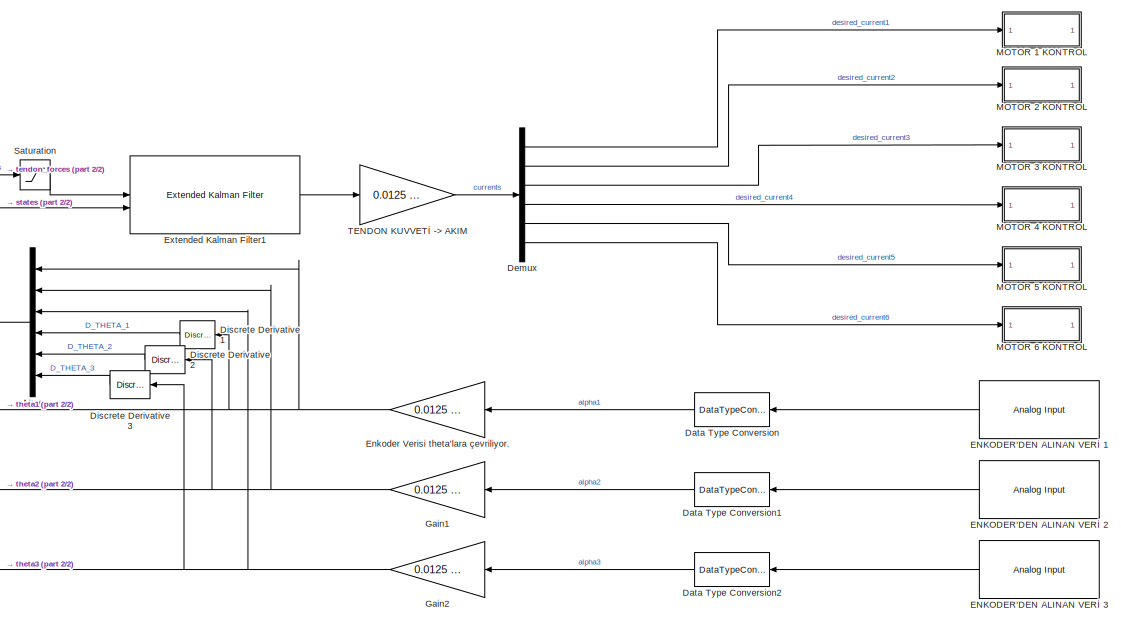
[diagram: root canvas - part 1/2, right side, full height]
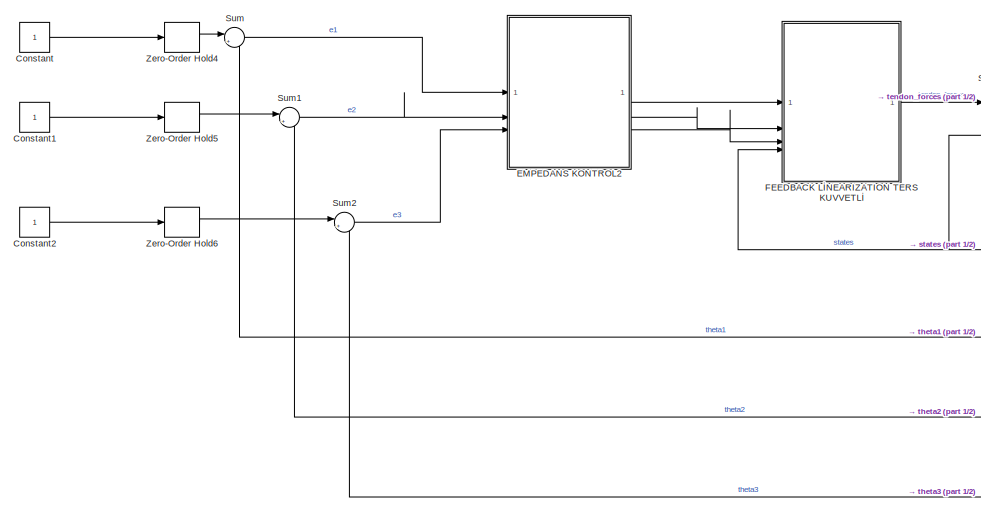
[diagram: root canvas - part 2/2, left side, full height]
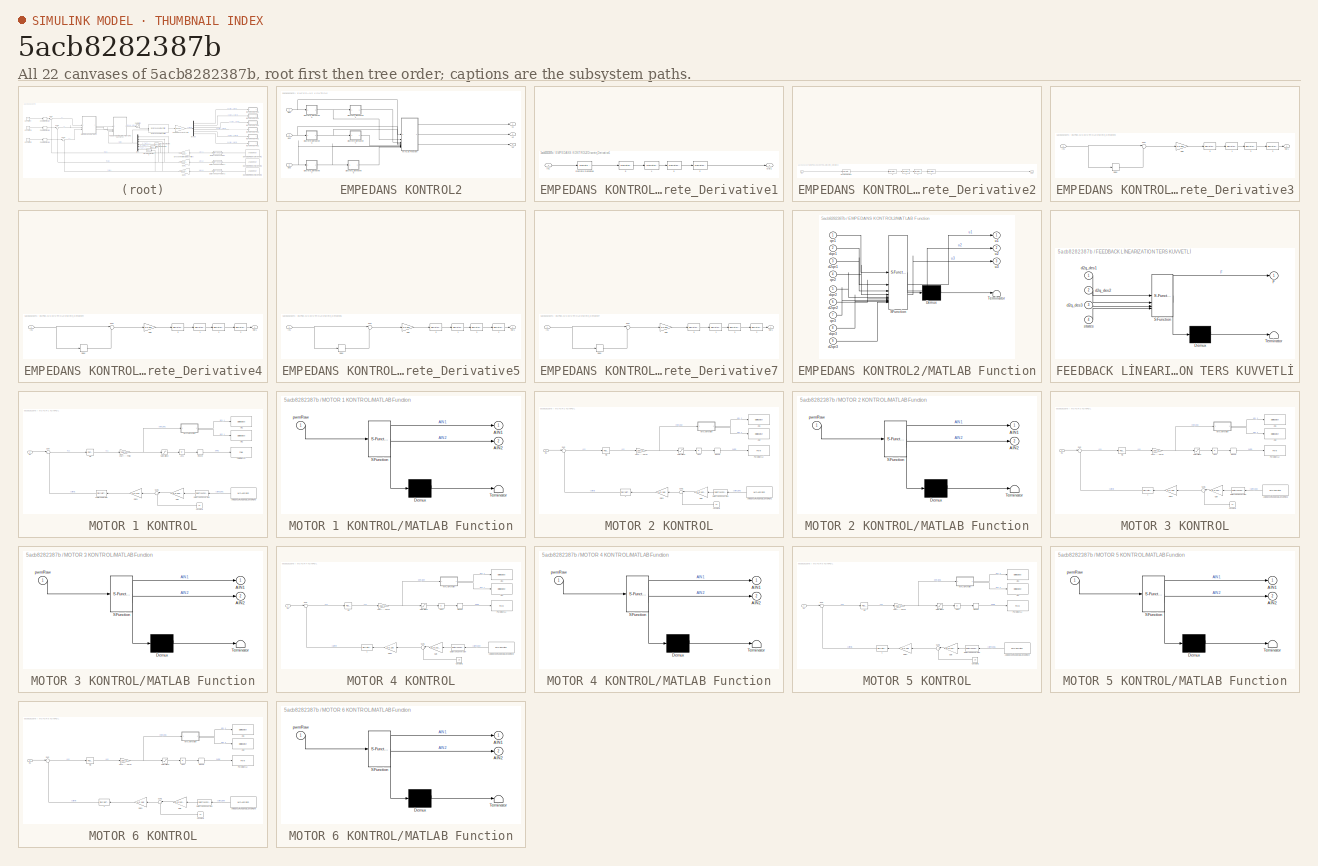
[diagram: thumbnail index - all 22 canvases of the model, root first then tree order]
MODEL slx_5acb8282387b
KIND model
CONFIG AbsTol = auto
CONFIG EnableMultiTasking = off
CONFIG FixedStep = 0.001
CONFIG MaxStep = auto
CONFIG MinStep = auto
CONFIG RelTol = 1e-3
CONFIG SampleTimeConstraint = Unconstrained
CONFIG SolverName = FixedStepDiscrete
CONFIG StartTime = 0.0
CONFIG StopTime = 10.0
BLOCK [Constant] Constant
BLOCK [Constant] Constant1
BLOCK [Constant] Constant2
BLOCK [DataTypeConversion] Data Type Conversion
  NameLocation = top
  OutDataTypeStr = double
  RndMeth = Floor
  SaturateOnIntegerOverflow = off
BLOCK [DataTypeConversion] Data Type Conversion1
  NameLocation = top
  OutDataTypeStr = double
  RndMeth = Floor
  SaturateOnIntegerOverflow = off
BLOCK [DataTypeConversion] Data Type Conversion2
  NameLocation = top
  OutDataTypeStr = double
  RndMeth = Floor
  SaturateOnIntegerOverflow = off
BLOCK [Demux] Demux
  Outputs = 6
BLOCK [Reference] Discrete Derivative1  REF=simulink/Discrete/Discrete Derivative
  NameLocation = top
  SourceBlock = simulink/Discrete/Discrete Derivative
  SourceType = Discrete Derivative
BLOCK [Reference] Discrete Derivative2  REF=simulink/Discrete/Discrete Derivative
  NameLocation = top
  SourceBlock = simulink/Discrete/Discrete Derivative
  SourceType = Discrete Derivative
BLOCK [Reference] Discrete Derivative3  REF=simulink/Discrete/Discrete Derivative
  NameLocation = top
  SourceBlock = simulink/Discrete/Discrete Derivative
  SourceType = Discrete Derivative
BLOCK [SubSystem] EMPEDANS KONTROL2
BLOCK [SubSystem] EMPEDANS KONTROL2/Discrete_Derivative1
BLOCK [DiscreteTransferFcn] EMPEDANS KONTROL2/Discrete_Derivative1/1
  CloseFcn = dspblkCoreblockFVToolHelper(gcbh,'close');
  CopyFcn = dspblkCoreblockFVToolHelper(gcbh,'copy');
  DeleteFcn = dspblkCoreblockFVToolHelper(gcbh,'close');
  Denominator = [1 -0.9412]
  InputPortMap = u0
  LoadFcn = dspblkCoreblockFVToolHelper(gcbh,'load');
  ModelCloseFcn = dspblkCoreblockFVToolHelper(gcbh,'close');
  NameLocation = top
  Numerator = [0.0588]
  PostSaveFcn = dspblkCoreblockFVToolHelper(gcbh,'postsave');
  PreSaveFcn = dspblkCoreblockFVToolHelper(gcbh,'presave');
BLOCK [DiscreteTransferFcn] EMPEDANS KONTROL2/Discrete_Derivative1/2
  CloseFcn = dspblkCoreblockFVToolHelper(gcbh,'close');
  CopyFcn = dspblkCoreblockFVToolHelper(gcbh,'copy');
  DeleteFcn = dspblkCoreblockFVToolHelper(gcbh,'close');
  Denominator = [1 -0.9412]
  InputPortMap = u0
  LoadFcn = dspblkCoreblockFVToolHelper(gcbh,'load');
  ModelCloseFcn = dspblkCoreblockFVToolHelper(gcbh,'close');
  NameLocation = top
  Numerator = [0.0588]
  PostSaveFcn = dspblkCoreblockFVToolHelper(gcbh,'postsave');
  PreSaveFcn = dspblkCoreblockFVToolHelper(gcbh,'presave');
BLOCK [DiscreteTransferFcn] EMPEDANS KONTROL2/Discrete_Derivative1/3
  CloseFcn = dspblkCoreblockFVToolHelper(gcbh,'close');
  CopyFcn = dspblkCoreblockFVToolHelper(gcbh,'copy');
  DeleteFcn = dspblkCoreblockFVToolHelper(gcbh,'close');
  Denominator = [1 -0.9412]
  InputPortMap = u0
  LoadFcn = dspblkCoreblockFVToolHelper(gcbh,'load');
  ModelCloseFcn = dspblkCoreblockFVToolHelper(gcbh,'close');
  NameLocation = top
  Numerator = [0.0588]
  PostSaveFcn = dspblkCoreblockFVToolHelper(gcbh,'postsave');
  PreSaveFcn = dspblkCoreblockFVToolHelper(gcbh,'presave');
BLOCK [DiscreteTransferFcn] EMPEDANS KONTROL2/Discrete_Derivative1/5
  CloseFcn = dspblkCoreblockFVToolHelper(gcbh,'close');
  CopyFcn = dspblkCoreblockFVToolHelper(gcbh,'copy');
  DeleteFcn = dspblkCoreblockFVToolHelper(gcbh,'close');
  Denominator = [1 -0.9412]
  InputPortMap = u0
  LoadFcn = dspblkCoreblockFVToolHelper(gcbh,'load');
  ModelCloseFcn = dspblkCoreblockFVToolHelper(gcbh,'close');
  NameLocation = top
  Numerator = [0.0588]
  PostSaveFcn = dspblkCoreblockFVToolHelper(gcbh,'postsave');
  PreSaveFcn = dspblkCoreblockFVToolHelper(gcbh,'presave');
BLOCK [Reference] EMPEDANS KONTROL2/Discrete_Derivative1/Discrete Derivative  REF=simulink/Discrete/Discrete Derivative
  SourceBlock = simulink/Discrete/Discrete Derivative
  SourceType = Discrete Derivative
BLOCK [Inport] EMPEDANS KONTROL2/Discrete_Derivative1/In1
BLOCK [Outport] EMPEDANS KONTROL2/Discrete_Derivative1/Out1
BLOCK [SubSystem] EMPEDANS KONTROL2/Discrete_Derivative2
BLOCK [DiscreteTransferFcn] EMPEDANS KONTROL2/Discrete_Derivative2/1
  CloseFcn = dspblkCoreblockFVToolHelper(gcbh,'close');
  CopyFcn = dspblkCoreblockFVToolHelper(gcbh,'copy');
  DeleteFcn = dspblkCoreblockFVToolHelper(gcbh,'close');
  Denominator = [1 -0.9412]
  InputPortMap = u0
  LoadFcn = dspblkCoreblockFVToolHelper(gcbh,'load');
  ModelCloseFcn = dspblkCoreblockFVToolHelper(gcbh,'close');
  NameLocation = top
  Numerator = [0.0588]
  PostSaveFcn = dspblkCoreblockFVToolHelper(gcbh,'postsave');
  PreSaveFcn = dspblkCoreblockFVToolHelper(gcbh,'presave');
BLOCK [DiscreteTransferFcn] EMPEDANS KONTROL2/Discrete_Derivative2/2
  CloseFcn = dspblkCoreblockFVToolHelper(gcbh,'close');
  CopyFcn = dspblkCoreblockFVToolHelper(gcbh,'copy');
  DeleteFcn = dspblkCoreblockFVToolHelper(gcbh,'close');
  Denominator = [1 -0.9412]
  InputPortMap = u0
  LoadFcn = dspblkCoreblockFVToolHelper(gcbh,'load');
  ModelCloseFcn = dspblkCoreblockFVToolHelper(gcbh,'close');
  NameLocation = top
  Numerator = [0.0588]
  PostSaveFcn = dspblkCoreblockFVToolHelper(gcbh,'postsave');
  PreSaveFcn = dspblkCoreblockFVToolHelper(gcbh,'presave');
BLOCK [DiscreteTransferFcn] EMPEDANS KONTROL2/Discrete_Derivative2/3
  CloseFcn = dspblkCoreblockFVToolHelper(gcbh,'close');
  CopyFcn = dspblkCoreblockFVToolHelper(gcbh,'copy');
  DeleteFcn = dspblkCoreblockFVToolHelper(gcbh,'close');
  Denominator = [1 -0.9412]
  InputPortMap = u0
  LoadFcn = dspblkCoreblockFVToolHelper(gcbh,'load');
  ModelCloseFcn = dspblkCoreblockFVToolHelper(gcbh,'close');
  NameLocation = top
  Numerator = [0.0588]
  PostSaveFcn = dspblkCoreblockFVToolHelper(gcbh,'postsave');
  PreSaveFcn = dspblkCoreblockFVToolHelper(gcbh,'presave');
BLOCK [DiscreteTransferFcn] EMPEDANS KONTROL2/Discrete_Derivative2/5
  CloseFcn = dspblkCoreblockFVToolHelper(gcbh,'close');
  CopyFcn = dspblkCoreblockFVToolHelper(gcbh,'copy');
  DeleteFcn = dspblkCoreblockFVToolHelper(gcbh,'close');
  Denominator = [1 -0.9412]
  InputPortMap = u0
  LoadFcn = dspblkCoreblockFVToolHelper(gcbh,'load');
  ModelCloseFcn = dspblkCoreblockFVToolHelper(gcbh,'close');
  NameLocation = top
  Numerator = [0.0588]
  PostSaveFcn = dspblkCoreblockFVToolHelper(gcbh,'postsave');
  PreSaveFcn = dspblkCoreblockFVToolHelper(gcbh,'presave');
BLOCK [Reference] EMPEDANS KONTROL2/Discrete_Derivative2/Discrete Derivative  REF=simulink/Discrete/Discrete Derivative
  SourceBlock = simulink/Discrete/Discrete Derivative
  SourceType = Discrete Derivative
BLOCK [Inport] EMPEDANS KONTROL2/Discrete_Derivative2/In1
BLOCK [Outport] EMPEDANS KONTROL2/Discrete_Derivative2/Out1
BLOCK [SubSystem] EMPEDANS KONTROL2/Discrete_Derivative3
BLOCK [DiscreteTransferFcn] EMPEDANS KONTROL2/Discrete_Derivative3/1
  CloseFcn = dspblkCoreblockFVToolHelper(gcbh,'close');
  CopyFcn = dspblkCoreblockFVToolHelper(gcbh,'copy');
  DeleteFcn = dspblkCoreblockFVToolHelper(gcbh,'close');
  Denominator = [1 -0.9412]
  InputPortMap = u0
  LoadFcn = dspblkCoreblockFVToolHelper(gcbh,'load');
  ModelCloseFcn = dspblkCoreblockFVToolHelper(gcbh,'close');
  NameLocation = top
  Numerator = [0.0588]
  PostSaveFcn = dspblkCoreblockFVToolHelper(gcbh,'postsave');
  PreSaveFcn = dspblkCoreblockFVToolHelper(gcbh,'presave');
BLOCK [DiscreteTransferFcn] EMPEDANS KONTROL2/Discrete_Derivative3/2
  CloseFcn = dspblkCoreblockFVToolHelper(gcbh,'close');
  CopyFcn = dspblkCoreblockFVToolHelper(gcbh,'copy');
  DeleteFcn = dspblkCoreblockFVToolHelper(gcbh,'close');
  Denominator = [1 -0.9412]
  InputPortMap = u0
  LoadFcn = dspblkCoreblockFVToolHelper(gcbh,'load');
  ModelCloseFcn = dspblkCoreblockFVToolHelper(gcbh,'close');
  NameLocation = top
  Numerator = [0.0588]
  PostSaveFcn = dspblkCoreblockFVToolHelper(gcbh,'postsave');
  PreSaveFcn = dspblkCoreblockFVToolHelper(gcbh,'presave');
BLOCK [DiscreteTransferFcn] EMPEDANS KONTROL2/Discrete_Derivative3/3
  CloseFcn = dspblkCoreblockFVToolHelper(gcbh,'close');
  CopyFcn = dspblkCoreblockFVToolHelper(gcbh,'copy');
  DeleteFcn = dspblkCoreblockFVToolHelper(gcbh,'close');
  Denominator = [1 -0.9412]
  InputPortMap = u0
  LoadFcn = dspblkCoreblockFVToolHelper(gcbh,'load');
  ModelCloseFcn = dspblkCoreblockFVToolHelper(gcbh,'close');
  NameLocation = top
  Numerator = [0.0588]
  PostSaveFcn = dspblkCoreblockFVToolHelper(gcbh,'postsave');
  PreSaveFcn = dspblkCoreblockFVToolHelper(gcbh,'presave');
BLOCK [DiscreteTransferFcn] EMPEDANS KONTROL2/Discrete_Derivative3/5
  CloseFcn = dspblkCoreblockFVToolHelper(gcbh,'close');
  CopyFcn = dspblkCoreblockFVToolHelper(gcbh,'copy');
  DeleteFcn = dspblkCoreblockFVToolHelper(gcbh,'close');
  Denominator = [1 -0.9412]
  InputPortMap = u0
  LoadFcn = dspblkCoreblockFVToolHelper(gcbh,'load');
  ModelCloseFcn = dspblkCoreblockFVToolHelper(gcbh,'close');
  NameLocation = top
  Numerator = [0.0588]
  PostSaveFcn = dspblkCoreblockFVToolHelper(gcbh,'postsave');
  PreSaveFcn = dspblkCoreblockFVToolHelper(gcbh,'presave');
BLOCK [Delay] EMPEDANS KONTROL2/Discrete_Derivative3/Delay
  DelayLength = 1
  InputPortMap = u0
  InputProcessing = Columns as channels (frame based)
  SampleTime = 0.001
BLOCK [Gain] EMPEDANS KONTROL2/Discrete_Derivative3/Gain
  Gain = 1/0.001
BLOCK [Inport] EMPEDANS KONTROL2/Discrete_Derivative3/In1
BLOCK [Outport] EMPEDANS KONTROL2/Discrete_Derivative3/Out1
BLOCK [Sum] EMPEDANS KONTROL2/Discrete_Derivative3/Sum
  Inputs = |+-
BLOCK [SubSystem] EMPEDANS KONTROL2/Discrete_Derivative4
BLOCK [DiscreteTransferFcn] EMPEDANS KONTROL2/Discrete_Derivative4/1
  CloseFcn = dspblkCoreblockFVToolHelper(gcbh,'close');
  CopyFcn = dspblkCoreblockFVToolHelper(gcbh,'copy');
  DeleteFcn = dspblkCoreblockFVToolHelper(gcbh,'close');
  Denominator = [1 -0.9412]
  InputPortMap = u0
  LoadFcn = dspblkCoreblockFVToolHelper(gcbh,'load');
  ModelCloseFcn = dspblkCoreblockFVToolHelper(gcbh,'close');
  NameLocation = top
  Numerator = [0.0588]
  PostSaveFcn = dspblkCoreblockFVToolHelper(gcbh,'postsave');
  PreSaveFcn = dspblkCoreblockFVToolHelper(gcbh,'presave');
BLOCK [DiscreteTransferFcn] EMPEDANS KONTROL2/Discrete_Derivative4/2
  CloseFcn = dspblkCoreblockFVToolHelper(gcbh,'close');
  CopyFcn = dspblkCoreblockFVToolHelper(gcbh,'copy');
  DeleteFcn = dspblkCoreblockFVToolHelper(gcbh,'close');
  Denominator = [1 -0.9412]
  InputPortMap = u0
  LoadFcn = dspblkCoreblockFVToolHelper(gcbh,'load');
  ModelCloseFcn = dspblkCoreblockFVToolHelper(gcbh,'close');
  NameLocation = top
  Numerator = [0.0588]
  PostSaveFcn = dspblkCoreblockFVToolHelper(gcbh,'postsave');
  PreSaveFcn = dspblkCoreblockFVToolHelper(gcbh,'presave');
BLOCK [DiscreteTransferFcn] EMPEDANS KONTROL2/Discrete_Derivative4/3
  CloseFcn = dspblkCoreblockFVToolHelper(gcbh,'close');
  CopyFcn = dspblkCoreblockFVToolHelper(gcbh,'copy');
  DeleteFcn = dspblkCoreblockFVToolHelper(gcbh,'close');
  Denominator = [1 -0.9412]
  InputPortMap = u0
  LoadFcn = dspblkCoreblockFVToolHelper(gcbh,'load');
  ModelCloseFcn = dspblkCoreblockFVToolHelper(gcbh,'close');
  NameLocation = top
  Numerator = [0.0588]
  PostSaveFcn = dspblkCoreblockFVToolHelper(gcbh,'postsave');
  PreSaveFcn = dspblkCoreblockFVToolHelper(gcbh,'presave');
BLOCK [DiscreteTransferFcn] EMPEDANS KONTROL2/Discrete_Derivative4/5
  CloseFcn = dspblkCoreblockFVToolHelper(gcbh,'close');
  CopyFcn = dspblkCoreblockFVToolHelper(gcbh,'copy');
  DeleteFcn = dspblkCoreblockFVToolHelper(gcbh,'close');
  Denominator = [1 -0.9412]
  InputPortMap = u0
  LoadFcn = dspblkCoreblockFVToolHelper(gcbh,'load');
  ModelCloseFcn = dspblkCoreblockFVToolHelper(gcbh,'close');
  NameLocation = top
  Numerator = [0.0588]
  PostSaveFcn = dspblkCoreblockFVToolHelper(gcbh,'postsave');
  PreSaveFcn = dspblkCoreblockFVToolHelper(gcbh,'presave');
BLOCK [Delay] EMPEDANS KONTROL2/Discrete_Derivative4/Delay
  DelayLength = 1
  InputPortMap = u0
  InputProcessing = Columns as channels (frame based)
  SampleTime = 0.001
BLOCK [Gain] EMPEDANS KONTROL2/Discrete_Derivative4/Gain
  Gain = 1/0.001
BLOCK [Inport] EMPEDANS KONTROL2/Discrete_Derivative4/In1
BLOCK [Outport] EMPEDANS KONTROL2/Discrete_Derivative4/Out1
BLOCK [Sum] EMPEDANS KONTROL2/Discrete_Derivative4/Sum
  Inputs = |+-
BLOCK [SubSystem] EMPEDANS KONTROL2/Discrete_Derivative5
BLOCK [DiscreteTransferFcn] EMPEDANS KONTROL2/Discrete_Derivative5/1
  CloseFcn = dspblkCoreblockFVToolHelper(gcbh,'close');
  CopyFcn = dspblkCoreblockFVToolHelper(gcbh,'copy');
  DeleteFcn = dspblkCoreblockFVToolHelper(gcbh,'close');
  Denominator = [1 -0.9412]
  InputPortMap = u0
  LoadFcn = dspblkCoreblockFVToolHelper(gcbh,'load');
  ModelCloseFcn = dspblkCoreblockFVToolHelper(gcbh,'close');
  NameLocation = top
  Numerator = [0.0588]
  PostSaveFcn = dspblkCoreblockFVToolHelper(gcbh,'postsave');
  PreSaveFcn = dspblkCoreblockFVToolHelper(gcbh,'presave');
BLOCK [DiscreteTransferFcn] EMPEDANS KONTROL2/Discrete_Derivative5/2
  CloseFcn = dspblkCoreblockFVToolHelper(gcbh,'close');
  CopyFcn = dspblkCoreblockFVToolHelper(gcbh,'copy');
  DeleteFcn = dspblkCoreblockFVToolHelper(gcbh,'close');
  Denominator = [1 -0.9412]
  InputPortMap = u0
  LoadFcn = dspblkCoreblockFVToolHelper(gcbh,'load');
  ModelCloseFcn = dspblkCoreblockFVToolHelper(gcbh,'close');
  NameLocation = top
  Numerator = [0.0588]
  PostSaveFcn = dspblkCoreblockFVToolHelper(gcbh,'postsave');
  PreSaveFcn = dspblkCoreblockFVToolHelper(gcbh,'presave');
BLOCK [DiscreteTransferFcn] EMPEDANS KONTROL2/Discrete_Derivative5/3
  CloseFcn = dspblkCoreblockFVToolHelper(gcbh,'close');
  CopyFcn = dspblkCoreblockFVToolHelper(gcbh,'copy');
  DeleteFcn = dspblkCoreblockFVToolHelper(gcbh,'close');
  Denominator = [1 -0.9412]
  InputPortMap = u0
  LoadFcn = dspblkCoreblockFVToolHelper(gcbh,'load');
  ModelCloseFcn = dspblkCoreblockFVToolHelper(gcbh,'close');
  NameLocation = top
  Numerator = [0.0588]
  PostSaveFcn = dspblkCoreblockFVToolHelper(gcbh,'postsave');
  PreSaveFcn = dspblkCoreblockFVToolHelper(gcbh,'presave');
BLOCK [DiscreteTransferFcn] EMPEDANS KONTROL2/Discrete_Derivative5/5
  CloseFcn = dspblkCoreblockFVToolHelper(gcbh,'close');
  CopyFcn = dspblkCoreblockFVToolHelper(gcbh,'copy');
  DeleteFcn = dspblkCoreblockFVToolHelper(gcbh,'close');
  Denominator = [1 -0.9412]
  InputPortMap = u0
  LoadFcn = dspblkCoreblockFVToolHelper(gcbh,'load');
  ModelCloseFcn = dspblkCoreblockFVToolHelper(gcbh,'close');
  NameLocation = top
  Numerator = [0.0588]
  PostSaveFcn = dspblkCoreblockFVToolHelper(gcbh,'postsave');
  PreSaveFcn = dspblkCoreblockFVToolHelper(gcbh,'presave');
BLOCK [Delay] EMPEDANS KONTROL2/Discrete_Derivative5/Delay
  DelayLength = 1
  InputPortMap = u0
  InputProcessing = Columns as channels (frame based)
  SampleTime = 0.001
BLOCK [Gain] EMPEDANS KONTROL2/Discrete_Derivative5/Gain
  Gain = 1/0.001
BLOCK [Inport] EMPEDANS KONTROL2/Discrete_Derivative5/In1
BLOCK [Outport] EMPEDANS KONTROL2/Discrete_Derivative5/Out1
BLOCK [Sum] EMPEDANS KONTROL2/Discrete_Derivative5/Sum
  Inputs = |+-
BLOCK [SubSystem] EMPEDANS KONTROL2/Discrete_Derivative7
BLOCK [DiscreteTransferFcn] EMPEDANS KONTROL2/Discrete_Derivative7/1
  CloseFcn = dspblkCoreblockFVToolHelper(gcbh,'close');
  CopyFcn = dspblkCoreblockFVToolHelper(gcbh,'copy');
  DeleteFcn = dspblkCoreblockFVToolHelper(gcbh,'close');
  Denominator = [1 -0.9412]
  InputPortMap = u0
  LoadFcn = dspblkCoreblockFVToolHelper(gcbh,'load');
  ModelCloseFcn = dspblkCoreblockFVToolHelper(gcbh,'close');
  NameLocation = top
  Numerator = [0.0588]
  PostSaveFcn = dspblkCoreblockFVToolHelper(gcbh,'postsave');
  PreSaveFcn = dspblkCoreblockFVToolHelper(gcbh,'presave');
BLOCK [DiscreteTransferFcn] EMPEDANS KONTROL2/Discrete_Derivative7/2
  CloseFcn = dspblkCoreblockFVToolHelper(gcbh,'close');
  CopyFcn = dspblkCoreblockFVToolHelper(gcbh,'copy');
  DeleteFcn = dspblkCoreblockFVToolHelper(gcbh,'close');
  Denominator = [1 -0.9412]
  InputPortMap = u0
  LoadFcn = dspblkCoreblockFVToolHelper(gcbh,'load');
  ModelCloseFcn = dspblkCoreblockFVToolHelper(gcbh,'close');
  NameLocation = top
  Numerator = [0.0588]
  PostSaveFcn = dspblkCoreblockFVToolHelper(gcbh,'postsave');
  PreSaveFcn = dspblkCoreblockFVToolHelper(gcbh,'presave');
BLOCK [DiscreteTransferFcn] EMPEDANS KONTROL2/Discrete_Derivative7/3
  CloseFcn = dspblkCoreblockFVToolHelper(gcbh,'close');
  CopyFcn = dspblkCoreblockFVToolHelper(gcbh,'copy');
  DeleteFcn = dspblkCoreblockFVToolHelper(gcbh,'close');
  Denominator = [1 -0.9412]
  InputPortMap = u0
  LoadFcn = dspblkCoreblockFVToolHelper(gcbh,'load');
  ModelCloseFcn = dspblkCoreblockFVToolHelper(gcbh,'close');
  NameLocation = top
  Numerator = [0.0588]
  PostSaveFcn = dspblkCoreblockFVToolHelper(gcbh,'postsave');
  PreSaveFcn = dspblkCoreblockFVToolHelper(gcbh,'presave');
BLOCK [DiscreteTransferFcn] EMPEDANS KONTROL2/Discrete_Derivative7/5
  CloseFcn = dspblkCoreblockFVToolHelper(gcbh,'close');
  CopyFcn = dspblkCoreblockFVToolHelper(gcbh,'copy');
  DeleteFcn = dspblkCoreblockFVToolHelper(gcbh,'close');
  Denominator = [1 -0.9412]
  InputPortMap = u0
  LoadFcn = dspblkCoreblockFVToolHelper(gcbh,'load');
  ModelCloseFcn = dspblkCoreblockFVToolHelper(gcbh,'close');
  NameLocation = top
  Numerator = [0.0588]
  PostSaveFcn = dspblkCoreblockFVToolHelper(gcbh,'postsave');
  PreSaveFcn = dspblkCoreblockFVToolHelper(gcbh,'presave');
BLOCK [Delay] EMPEDANS KONTROL2/Discrete_Derivative7/Delay
  DelayLength = 1
  InputPortMap = u0
  InputProcessing = Columns as channels (frame based)
  SampleTime = 0.001
BLOCK [Gain] EMPEDANS KONTROL2/Discrete_Derivative7/Gain
  Gain = 1/0.001
BLOCK [Inport] EMPEDANS KONTROL2/Discrete_Derivative7/In1
BLOCK [Outport] EMPEDANS KONTROL2/Discrete_Derivative7/Out1
BLOCK [Sum] EMPEDANS KONTROL2/Discrete_Derivative7/Sum
  Inputs = |+-
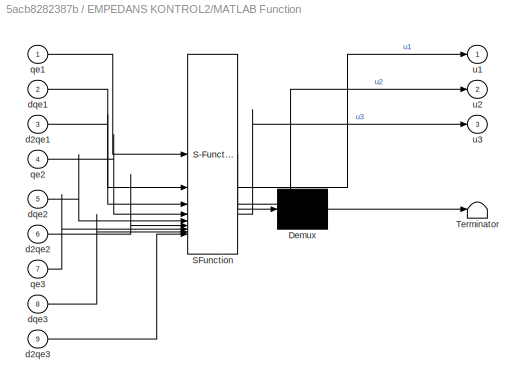
BLOCK [SubSystem] EMPEDANS KONTROL2/MATLAB Function
  ErrorFcn = Stateflow.Translate.translate
  PermitHierarchicalResolution = ExplicitOnly
  SFBlockType = MATLAB Function
  TreatAsAtomicUnit = on
BLOCK [Demux] EMPEDANS KONTROL2/MATLAB Function/ Demux 
  Outputs = 1
BLOCK [S-Function] EMPEDANS KONTROL2/MATLAB Function/ SFunction 
  EnableBusSupport = on
  FunctionName = sf_sfun
  PortCounts = [9 4]
  SFcnIsStateOwnerBlock = off
  SFunctionDeploymentMode = off
  Tag = Stateflow S-Function 5
BLOCK [Terminator] EMPEDANS KONTROL2/MATLAB Function/ Terminator 
BLOCK [Inport] EMPEDANS KONTROL2/MATLAB Function/d2qe1
  Port = 3
BLOCK [Inport] EMPEDANS KONTROL2/MATLAB Function/d2qe2
  Port = 6
BLOCK [Inport] EMPEDANS KONTROL2/MATLAB Function/d2qe3
  Port = 9
BLOCK [Inport] EMPEDANS KONTROL2/MATLAB Function/dqe1
  Port = 2
BLOCK [Inport] EMPEDANS KONTROL2/MATLAB Function/dqe2
  Port = 5
BLOCK [Inport] EMPEDANS KONTROL2/MATLAB Function/dqe3
  Port = 8
BLOCK [Inport] EMPEDANS KONTROL2/MATLAB Function/qe1
BLOCK [Inport] EMPEDANS KONTROL2/MATLAB Function/qe2
  Port = 4
BLOCK [Inport] EMPEDANS KONTROL2/MATLAB Function/qe3
  Port = 7
BLOCK [Outport] EMPEDANS KONTROL2/MATLAB Function/u1
BLOCK [Outport] EMPEDANS KONTROL2/MATLAB Function/u2
  Port = 2
BLOCK [Outport] EMPEDANS KONTROL2/MATLAB Function/u3
  Port = 3
BLOCK [Inport] EMPEDANS KONTROL2/qe1
BLOCK [Inport] EMPEDANS KONTROL2/qe2
  Port = 2
BLOCK [Inport] EMPEDANS KONTROL2/qe3
  Port = 3
BLOCK [Outport] EMPEDANS KONTROL2/u1
BLOCK [Outport] EMPEDANS KONTROL2/u2
  Port = 2
BLOCK [Outport] EMPEDANS KONTROL2/u3
  Port = 3
BLOCK [Reference] ENKODER'DEN ALINAN VERİ 1  REF=arduinolib/Analog Input
  SourceBlock = arduinolib/Analog Input
  SourceType = Arduino Analog Input
BLOCK [Reference] ENKODER'DEN ALINAN VERİ 2  REF=arduinolib/Analog Input
  SourceBlock = arduinolib/Analog Input
  SourceType = Arduino Analog Input
BLOCK [Reference] ENKODER'DEN ALINAN VERİ 3  REF=arduinolib/Analog Input
  SourceBlock = arduinolib/Analog Input
  SourceType = Arduino Analog Input
BLOCK [Gain] Enkoder Verisi theta'lara çevriliyor.
  Gain = 0.0125 / 0.005
  NameLocation = top
BLOCK [Reference] Extended Kalman Filter1  REF=sharedTrackingLibrary/Extended Kalman Filter
  LibrarySourceBlock = slident/Estimators/Extended Kalman Filter
  SourceBlock = sharedTrackingLibrary/Extended Kalman Filter
  SourceType = Extended Kalman Filter
BLOCK [SubSystem] FEEDBACK LİNEARIZATION TERS KUVVETLİ
  ErrorFcn = Stateflow.Translate.translate
  PermitHierarchicalResolution = ExplicitOnly
  SFBlockType = MATLAB Function
  TreatAsAtomicUnit = on
BLOCK [Demux] FEEDBACK LİNEARIZATION TERS KUVVETLİ/ Demux 
  Outputs = 1
BLOCK [S-Function] FEEDBACK LİNEARIZATION TERS KUVVETLİ/ SFunction 
  EnableBusSupport = on
  FunctionName = sf_sfun
  PortCounts = [4 2]
  SFcnIsStateOwnerBlock = off
  SFunctionDeploymentMode = off
  Tag = Stateflow S-Function 3
BLOCK [Terminator] FEEDBACK LİNEARIZATION TERS KUVVETLİ/ Terminator 
BLOCK [Outport] FEEDBACK LİNEARIZATION TERS KUVVETLİ/F
BLOCK [Inport] FEEDBACK LİNEARIZATION TERS KUVVETLİ/d2q_des1
BLOCK [Inport] FEEDBACK LİNEARIZATION TERS KUVVETLİ/d2q_des2
  Port = 2
BLOCK [Inport] FEEDBACK LİNEARIZATION TERS KUVVETLİ/d2q_des3
  Port = 3
BLOCK [Inport] FEEDBACK LİNEARIZATION TERS KUVVETLİ/states
  Port = 4
BLOCK [Gain] Gain1
  Gain = 0.0125 / 0.005
  NameLocation = top
BLOCK [Gain] Gain2
  Gain = 0.0125 / 0.005
  NameLocation = top
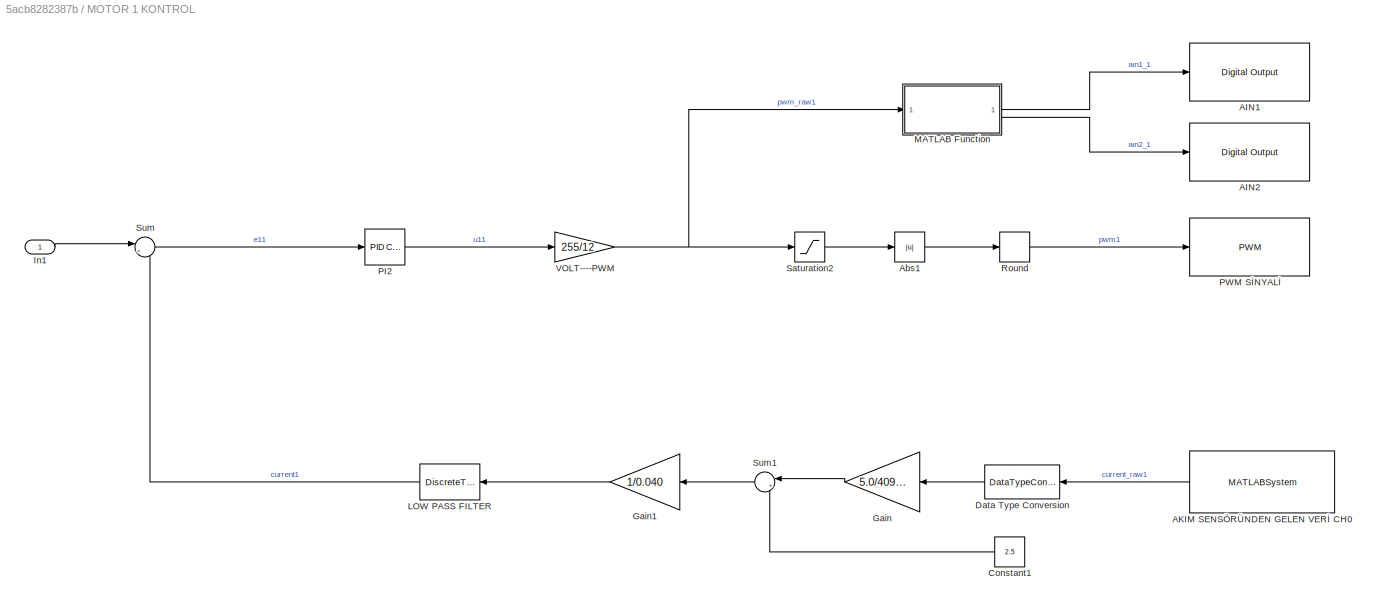
BLOCK [SubSystem] MOTOR 1 KONTROL
BLOCK [Reference] MOTOR 1 KONTROL/AIN1  REF=arduinolib/Digital Output
  SourceBlock = arduinolib/Digital Output
  SourceType = Arduino Digital Output
BLOCK [Reference] MOTOR 1 KONTROL/AIN2  REF=arduinolib/Digital Output
  SourceBlock = arduinolib/Digital Output
  SourceType = Arduino Digital Output
BLOCK [MATLABSystem] MOTOR 1 KONTROL/AKIM SENSÖRÜNDEN GELEN VERİ CH0
  Channel = 0
  MaskDisplay = disp('MCP3208Reader');\nport_label('output',1,'value');
  MaskType = MCP3208Reader
  SimulateUsing = Code generation
  System = MCP3208Reader
BLOCK [Abs] MOTOR 1 KONTROL/Abs1
  RndMeth = Round
  SaturateOnIntegerOverflow = off
BLOCK [Constant] MOTOR 1 KONTROL/Constant1
  NameLocation = top
  Value = 2.5
BLOCK [DataTypeConversion] MOTOR 1 KONTROL/Data Type Conversion
  NameLocation = top
  OutDataTypeStr = double
  RndMeth = Floor
  SaturateOnIntegerOverflow = off
BLOCK [Gain] MOTOR 1 KONTROL/Gain
  Gain = 5.0/4095.0
  NameLocation = top
BLOCK [Gain] MOTOR 1 KONTROL/Gain1
  Gain = 1/0.040
  NameLocation = top
BLOCK [Inport] MOTOR 1 KONTROL/In1
BLOCK [DiscreteTransferFcn] MOTOR 1 KONTROL/LOW PASS FILTER
  CloseFcn = dspblkCoreblockFVToolHelper(gcbh,'close');
  CopyFcn = dspblkCoreblockFVToolHelper(gcbh,'copy');
  DeleteFcn = dspblkCoreblockFVToolHelper(gcbh,'close');
  Denominator = [1 -0.9412]
  InputPortMap = u0
  LoadFcn = dspblkCoreblockFVToolHelper(gcbh,'load');
  ModelCloseFcn = dspblkCoreblockFVToolHelper(gcbh,'close');
  Numerator = [0.0588]
  PostSaveFcn = dspblkCoreblockFVToolHelper(gcbh,'postsave');
  PreSaveFcn = dspblkCoreblockFVToolHelper(gcbh,'presave');
BLOCK [SubSystem] MOTOR 1 KONTROL/MATLAB Function
  ErrorFcn = Stateflow.Translate.translate
  PermitHierarchicalResolution = ExplicitOnly
  SFBlockType = MATLAB Function
  TreatAsAtomicUnit = on
BLOCK [Demux] MOTOR 1 KONTROL/MATLAB Function/ Demux 
  Outputs = 1
BLOCK [S-Function] MOTOR 1 KONTROL/MATLAB Function/ SFunction 
  EnableBusSupport = on
  FunctionName = sf_sfun
  PortCounts = [1 3]
  SFcnIsStateOwnerBlock = off
  SFunctionDeploymentMode = off
  Tag = Stateflow S-Function 8
BLOCK [Terminator] MOTOR 1 KONTROL/MATLAB Function/ Terminator 
BLOCK [Outport] MOTOR 1 KONTROL/MATLAB Function/AIN1
BLOCK [Outport] MOTOR 1 KONTROL/MATLAB Function/AIN2
  Port = 2
BLOCK [Inport] MOTOR 1 KONTROL/MATLAB Function/pwmRaw
BLOCK [Reference] MOTOR 1 KONTROL/PI2  REF=slpidlib/PID Controller
  LibrarySourceBlock = simulink/Continuous/PID Controller
  SourceBlock = slpidlib/PID Controller
  SourceType = PID 1dof
BLOCK [Reference] MOTOR 1 KONTROL/PWM SİNYALİ  REF=arduinolib/PWM
  SourceBlock = arduinolib/PWM
  SourceType = Arduino PWM
BLOCK [Rounding] MOTOR 1 KONTROL/Round
  Operator = round
BLOCK [Saturate] MOTOR 1 KONTROL/Saturation2
  LowerLimit = -255
  UpperLimit = 255
BLOCK [Sum] MOTOR 1 KONTROL/Sum
  Inputs = |+-
BLOCK [Sum] MOTOR 1 KONTROL/Sum1
  Inputs = |+-
  NameLocation = top
BLOCK [Gain] MOTOR 1 KONTROL/VOLT----PWM
  Gain = 255/12
BLOCK [SubSystem] MOTOR 2 KONTROL
BLOCK [DiscreteTransferFcn] MOTOR 2 KONTROL/1
  CloseFcn = dspblkCoreblockFVToolHelper(gcbh,'close');
  CopyFcn = dspblkCoreblockFVToolHelper(gcbh,'copy');
  DeleteFcn = dspblkCoreblockFVToolHelper(gcbh,'close');
  Denominator = [1 -0.9412]
  InputPortMap = u0
  LoadFcn = dspblkCoreblockFVToolHelper(gcbh,'load');
  ModelCloseFcn = dspblkCoreblockFVToolHelper(gcbh,'close');
  Numerator = [0.0588]
  PostSaveFcn = dspblkCoreblockFVToolHelper(gcbh,'postsave');
  PreSaveFcn = dspblkCoreblockFVToolHelper(gcbh,'presave');
BLOCK [Reference] MOTOR 2 KONTROL/AIN1  REF=arduinolib/Digital Output
  SourceBlock = arduinolib/Digital Output
  SourceType = Arduino Digital Output
BLOCK [Reference] MOTOR 2 KONTROL/AIN2  REF=arduinolib/Digital Output
  SourceBlock = arduinolib/Digital Output
  SourceType = Arduino Digital Output
BLOCK [MATLABSystem] MOTOR 2 KONTROL/AKIM SENSÖRÜNDEN GELEN VERİ CH1
  Channel = 0
  MaskDisplay = disp('MCP3208Reader');\nport_label('output',1,'value');
  MaskType = MCP3208Reader
  SimulateUsing = Code generation
  System = MCP3208Reader
BLOCK [Abs] MOTOR 2 KONTROL/Abs1
  RndMeth = Round
  SaturateOnIntegerOverflow = off
BLOCK [Constant] MOTOR 2 KONTROL/Constant1
  NameLocation = top
  Value = 2.5
BLOCK [DataTypeConversion] MOTOR 2 KONTROL/Data Type Conversion
  NameLocation = top
  OutDataTypeStr = double
  RndMeth = Floor
  SaturateOnIntegerOverflow = off
BLOCK [Gain] MOTOR 2 KONTROL/Gain
  Gain = 5.0/1023.0
  NameLocation = top
BLOCK [Gain] MOTOR 2 KONTROL/Gain1
  Gain = 1/0.185
  NameLocation = top
BLOCK [Inport] MOTOR 2 KONTROL/In1
BLOCK [SubSystem] MOTOR 2 KONTROL/MATLAB Function
  ErrorFcn = Stateflow.Translate.translate
  PermitHierarchicalResolution = ExplicitOnly
  SFBlockType = MATLAB Function
  TreatAsAtomicUnit = on
BLOCK [Demux] MOTOR 2 KONTROL/MATLAB Function/ Demux 
  Outputs = 1
BLOCK [S-Function] MOTOR 2 KONTROL/MATLAB Function/ SFunction 
  EnableBusSupport = on
  FunctionName = sf_sfun
  PortCounts = [1 3]
  SFcnIsStateOwnerBlock = off
  SFunctionDeploymentMode = off
  Tag = Stateflow S-Function 9
BLOCK [Terminator] MOTOR 2 KONTROL/MATLAB Function/ Terminator 
BLOCK [Outport] MOTOR 2 KONTROL/MATLAB Function/AIN1
BLOCK [Outport] MOTOR 2 KONTROL/MATLAB Function/AIN2
  Port = 2
BLOCK [Inport] MOTOR 2 KONTROL/MATLAB Function/pwmRaw
BLOCK [Reference] MOTOR 2 KONTROL/PI2  REF=slpidlib/PID Controller
  LibrarySourceBlock = simulink/Continuous/PID Controller
  SourceBlock = slpidlib/PID Controller
  SourceType = PID 1dof
BLOCK [Reference] MOTOR 2 KONTROL/PWM SİNYALİ  REF=arduinolib/PWM
  SourceBlock = arduinolib/PWM
  SourceType = Arduino PWM
BLOCK [Rounding] MOTOR 2 KONTROL/Round
  Operator = round
BLOCK [Saturate] MOTOR 2 KONTROL/Saturation2
  LowerLimit = -255
  UpperLimit = 255
BLOCK [Sum] MOTOR 2 KONTROL/Sum
  Inputs = |+-
BLOCK [Sum] MOTOR 2 KONTROL/Sum1
  Inputs = |+-
  NameLocation = top
BLOCK [Gain] MOTOR 2 KONTROL/VOLT----PWM
  Gain = 255/12
BLOCK [SubSystem] MOTOR 3 KONTROL
BLOCK [DiscreteTransferFcn] MOTOR 3 KONTROL/1
  CloseFcn = dspblkCoreblockFVToolHelper(gcbh,'close');
  CopyFcn = dspblkCoreblockFVToolHelper(gcbh,'copy');
  DeleteFcn = dspblkCoreblockFVToolHelper(gcbh,'close');
  Denominator = [1 -0.9412]
  InputPortMap = u0
  LoadFcn = dspblkCoreblockFVToolHelper(gcbh,'load');
  ModelCloseFcn = dspblkCoreblockFVToolHelper(gcbh,'close');
  Numerator = [0.0588]
  PostSaveFcn = dspblkCoreblockFVToolHelper(gcbh,'postsave');
  PreSaveFcn = dspblkCoreblockFVToolHelper(gcbh,'presave');
BLOCK [Reference] MOTOR 3 KONTROL/AIN1  REF=arduinolib/Digital Output
  SourceBlock = arduinolib/Digital Output
  SourceType = Arduino Digital Output
BLOCK [Reference] MOTOR 3 KONTROL/AIN2  REF=arduinolib/Digital Output
  SourceBlock = arduinolib/Digital Output
  SourceType = Arduino Digital Output
BLOCK [MATLABSystem] MOTOR 3 KONTROL/AKIM SENSÖRÜNDEN GELEN VERİ CH2
  Channel = 0
  MaskDisplay = disp('MCP3208Reader');\nport_label('output',1,'value');
  MaskType = MCP3208Reader
  SimulateUsing = Code generation
  System = MCP3208Reader
BLOCK [Abs] MOTOR 3 KONTROL/Abs1
  RndMeth = Round
  SaturateOnIntegerOverflow = off
BLOCK [Constant] MOTOR 3 KONTROL/Constant1
  NameLocation = top
  Value = 2.5
BLOCK [DataTypeConversion] MOTOR 3 KONTROL/Data Type Conversion
  NameLocation = top
  OutDataTypeStr = double
  RndMeth = Floor
  SaturateOnIntegerOverflow = off
BLOCK [Gain] MOTOR 3 KONTROL/Gain
  Gain = 5.0/1023.0
  NameLocation = top
BLOCK [Gain] MOTOR 3 KONTROL/Gain1
  Gain = 1/0.185
  NameLocation = top
BLOCK [Inport] MOTOR 3 KONTROL/In1
BLOCK [SubSystem] MOTOR 3 KONTROL/MATLAB Function
  ErrorFcn = Stateflow.Translate.translate
  PermitHierarchicalResolution = ExplicitOnly
  SFBlockType = MATLAB Function
  TreatAsAtomicUnit = on
BLOCK [Demux] MOTOR 3 KONTROL/MATLAB Function/ Demux 
  Outputs = 1
BLOCK [S-Function] MOTOR 3 KONTROL/MATLAB Function/ SFunction 
  EnableBusSupport = on
  FunctionName = sf_sfun
  PortCounts = [1 3]
  SFcnIsStateOwnerBlock = off
  SFunctionDeploymentMode = off
  Tag = Stateflow S-Function 10
BLOCK [Terminator] MOTOR 3 KONTROL/MATLAB Function/ Terminator 
BLOCK [Outport] MOTOR 3 KONTROL/MATLAB Function/AIN1
BLOCK [Outport] MOTOR 3 KONTROL/MATLAB Function/AIN2
  Port = 2
BLOCK [Inport] MOTOR 3 KONTROL/MATLAB Function/pwmRaw
BLOCK [Reference] MOTOR 3 KONTROL/PI2  REF=slpidlib/PID Controller
  LibrarySourceBlock = simulink/Continuous/PID Controller
  SourceBlock = slpidlib/PID Controller
  SourceType = PID 1dof
BLOCK [Reference] MOTOR 3 KONTROL/PWM SİNYALİ  REF=arduinolib/PWM
  SourceBlock = arduinolib/PWM
  SourceType = Arduino PWM
BLOCK [Rounding] MOTOR 3 KONTROL/Round
  Operator = round
BLOCK [Saturate] MOTOR 3 KONTROL/Saturation2
  LowerLimit = -255
  UpperLimit = 255
BLOCK [Sum] MOTOR 3 KONTROL/Sum
  Inputs = |+-
BLOCK [Sum] MOTOR 3 KONTROL/Sum1
  Inputs = |+-
  NameLocation = top
BLOCK [Gain] MOTOR 3 KONTROL/VOLT----PWM
  Gain = 255/12
BLOCK [SubSystem] MOTOR 4 KONTROL
BLOCK [DiscreteTransferFcn] MOTOR 4 KONTROL/1
  CloseFcn = dspblkCoreblockFVToolHelper(gcbh,'close');
  CopyFcn = dspblkCoreblockFVToolHelper(gcbh,'copy');
  DeleteFcn = dspblkCoreblockFVToolHelper(gcbh,'close');
  Denominator = [1 -0.9412]
  InputPortMap = u0
  LoadFcn = dspblkCoreblockFVToolHelper(gcbh,'load');
  ModelCloseFcn = dspblkCoreblockFVToolHelper(gcbh,'close');
  Numerator = [0.0588]
  PostSaveFcn = dspblkCoreblockFVToolHelper(gcbh,'postsave');
  PreSaveFcn = dspblkCoreblockFVToolHelper(gcbh,'presave');
BLOCK [Reference] MOTOR 4 KONTROL/AIN1  REF=arduinolib/Digital Output
  SourceBlock = arduinolib/Digital Output
  SourceType = Arduino Digital Output
BLOCK [Reference] MOTOR 4 KONTROL/AIN2  REF=arduinolib/Digital Output
  SourceBlock = arduinolib/Digital Output
  SourceType = Arduino Digital Output
BLOCK [MATLABSystem] MOTOR 4 KONTROL/AKIM SENSÖRÜNDEN GELEN VERİ CH3
  Channel = 0
  MaskDisplay = disp('MCP3208Reader');\nport_label('output',1,'value');
  MaskType = MCP3208Reader
  SimulateUsing = Code generation
  System = MCP3208Reader
BLOCK [Abs] MOTOR 4 KONTROL/Abs1
  RndMeth = Round
  SaturateOnIntegerOverflow = off
BLOCK [Constant] MOTOR 4 KONTROL/Constant1
  NameLocation = top
  Value = 2.5
BLOCK [DataTypeConversion] MOTOR 4 KONTROL/Data Type Conversion
  NameLocation = top
  OutDataTypeStr = double
  RndMeth = Floor
  SaturateOnIntegerOverflow = off
BLOCK [Gain] MOTOR 4 KONTROL/Gain
  Gain = 5.0/1023.0
  NameLocation = top
BLOCK [Gain] MOTOR 4 KONTROL/Gain1
  Gain = 1/0.185
  NameLocation = top
BLOCK [Inport] MOTOR 4 KONTROL/In1
BLOCK [SubSystem] MOTOR 4 KONTROL/MATLAB Function
  ErrorFcn = Stateflow.Translate.translate
  PermitHierarchicalResolution = ExplicitOnly
  SFBlockType = MATLAB Function
  TreatAsAtomicUnit = on
BLOCK [Demux] MOTOR 4 KONTROL/MATLAB Function/ Demux 
  Outputs = 1
BLOCK [S-Function] MOTOR 4 KONTROL/MATLAB Function/ SFunction 
  EnableBusSupport = on
  FunctionName = sf_sfun
  PortCounts = [1 3]
  SFcnIsStateOwnerBlock = off
  SFunctionDeploymentMode = off
  Tag = Stateflow S-Function 11
BLOCK [Terminator] MOTOR 4 KONTROL/MATLAB Function/ Terminator 
BLOCK [Outport] MOTOR 4 KONTROL/MATLAB Function/AIN1
BLOCK [Outport] MOTOR 4 KONTROL/MATLAB Function/AIN2
  Port = 2
BLOCK [Inport] MOTOR 4 KONTROL/MATLAB Function/pwmRaw
BLOCK [Reference] MOTOR 4 KONTROL/PI2  REF=slpidlib/PID Controller
  LibrarySourceBlock = simulink/Continuous/PID Controller
  SourceBlock = slpidlib/PID Controller
  SourceType = PID 1dof
BLOCK [Reference] MOTOR 4 KONTROL/PWM SİNYALİ  REF=arduinolib/PWM
  SourceBlock = arduinolib/PWM
  SourceType = Arduino PWM
BLOCK [Rounding] MOTOR 4 KONTROL/Round
  Operator = round
BLOCK [Saturate] MOTOR 4 KONTROL/Saturation2
  LowerLimit = -255
  UpperLimit = 255
BLOCK [Sum] MOTOR 4 KONTROL/Sum
  Inputs = |+-
BLOCK [Sum] MOTOR 4 KONTROL/Sum1
  Inputs = |+-
  NameLocation = top
BLOCK [Gain] MOTOR 4 KONTROL/VOLT----PWM
  Gain = 255/12
BLOCK [SubSystem] MOTOR 5 KONTROL
BLOCK [DiscreteTransferFcn] MOTOR 5 KONTROL/1
  CloseFcn = dspblkCoreblockFVToolHelper(gcbh,'close');
  CopyFcn = dspblkCoreblockFVToolHelper(gcbh,'copy');
  DeleteFcn = dspblkCoreblockFVToolHelper(gcbh,'close');
  Denominator = [1 -0.9412]
  InputPortMap = u0
  LoadFcn = dspblkCoreblockFVToolHelper(gcbh,'load');
  ModelCloseFcn = dspblkCoreblockFVToolHelper(gcbh,'close');
  Numerator = [0.0588]
  PostSaveFcn = dspblkCoreblockFVToolHelper(gcbh,'postsave');
  PreSaveFcn = dspblkCoreblockFVToolHelper(gcbh,'presave');
BLOCK [Reference] MOTOR 5 KONTROL/AIN1  REF=arduinolib/Digital Output
  SourceBlock = arduinolib/Digital Output
  SourceType = Arduino Digital Output
BLOCK [Reference] MOTOR 5 KONTROL/AIN2  REF=arduinolib/Digital Output
  SourceBlock = arduinolib/Digital Output
  SourceType = Arduino Digital Output
BLOCK [MATLABSystem] MOTOR 5 KONTROL/AKIM SENSÖRÜNDEN GELEN VERİ CH4
  Channel = 0
  MaskDisplay = disp('MCP3208Reader');\nport_label('output',1,'value');
  MaskType = MCP3208Reader
  SimulateUsing = Code generation
  System = MCP3208Reader
BLOCK [Abs] MOTOR 5 KONTROL/Abs1
  RndMeth = Round
  SaturateOnIntegerOverflow = off
BLOCK [Constant] MOTOR 5 KONTROL/Constant1
  NameLocation = top
  Value = 2.5
BLOCK [DataTypeConversion] MOTOR 5 KONTROL/Data Type Conversion
  NameLocation = top
  OutDataTypeStr = double
  RndMeth = Floor
  SaturateOnIntegerOverflow = off
BLOCK [Gain] MOTOR 5 KONTROL/Gain
  Gain = 5.0/1023.0
  NameLocation = top
BLOCK [Gain] MOTOR 5 KONTROL/Gain1
  Gain = 1/0.185
  NameLocation = top
BLOCK [Inport] MOTOR 5 KONTROL/In1
BLOCK [SubSystem] MOTOR 5 KONTROL/MATLAB Function
  ErrorFcn = Stateflow.Translate.translate
  PermitHierarchicalResolution = ExplicitOnly
  SFBlockType = MATLAB Function
  TreatAsAtomicUnit = on
BLOCK [Demux] MOTOR 5 KONTROL/MATLAB Function/ Demux 
  Outputs = 1
BLOCK [S-Function] MOTOR 5 KONTROL/MATLAB Function/ SFunction 
  EnableBusSupport = on
  FunctionName = sf_sfun
  PortCounts = [1 3]
  SFcnIsStateOwnerBlock = off
  SFunctionDeploymentMode = off
  Tag = Stateflow S-Function 12
BLOCK [Terminator] MOTOR 5 KONTROL/MATLAB Function/ Terminator 
BLOCK [Outport] MOTOR 5 KONTROL/MATLAB Function/AIN1
BLOCK [Outport] MOTOR 5 KONTROL/MATLAB Function/AIN2
  Port = 2
BLOCK [Inport] MOTOR 5 KONTROL/MATLAB Function/pwmRaw
BLOCK [Reference] MOTOR 5 KONTROL/PI2  REF=slpidlib/PID Controller
  LibrarySourceBlock = simulink/Continuous/PID Controller
  SourceBlock = slpidlib/PID Controller
  SourceType = PID 1dof
BLOCK [Reference] MOTOR 5 KONTROL/PWM SİNYALİ  REF=arduinolib/PWM
  SourceBlock = arduinolib/PWM
  SourceType = Arduino PWM
BLOCK [Rounding] MOTOR 5 KONTROL/Round
  Operator = round
BLOCK [Saturate] MOTOR 5 KONTROL/Saturation2
  LowerLimit = -255
  UpperLimit = 255
BLOCK [Sum] MOTOR 5 KONTROL/Sum
  Inputs = |+-
BLOCK [Sum] MOTOR 5 KONTROL/Sum1
  Inputs = |+-
  NameLocation = top
BLOCK [Gain] MOTOR 5 KONTROL/VOLT----PWM
  Gain = 255/12
BLOCK [SubSystem] MOTOR 6 KONTROL
BLOCK [DiscreteTransferFcn] MOTOR 6 KONTROL/1
  CloseFcn = dspblkCoreblockFVToolHelper(gcbh,'close');
  CopyFcn = dspblkCoreblockFVToolHelper(gcbh,'copy');
  DeleteFcn = dspblkCoreblockFVToolHelper(gcbh,'close');
  Denominator = [1 -0.9412]
  InputPortMap = u0
  LoadFcn = dspblkCoreblockFVToolHelper(gcbh,'load');
  ModelCloseFcn = dspblkCoreblockFVToolHelper(gcbh,'close');
  Numerator = [0.0588]
  PostSaveFcn = dspblkCoreblockFVToolHelper(gcbh,'postsave');
  PreSaveFcn = dspblkCoreblockFVToolHelper(gcbh,'presave');
BLOCK [Reference] MOTOR 6 KONTROL/AIN1  REF=arduinolib/Digital Output
  SourceBlock = arduinolib/Digital Output
  SourceType = Arduino Digital Output
BLOCK [Reference] MOTOR 6 KONTROL/AIN2  REF=arduinolib/Digital Output
  SourceBlock = arduinolib/Digital Output
  SourceType = Arduino Digital Output
BLOCK [MATLABSystem] MOTOR 6 KONTROL/AKIM SENSÖRÜNDEN GELEN VERİ CH5
  Channel = 0
  MaskDisplay = disp('MCP3208Reader');\nport_label('output',1,'value');
  MaskType = MCP3208Reader
  SimulateUsing = Code generation
  System = MCP3208Reader
BLOCK [Abs] MOTOR 6 KONTROL/Abs1
  RndMeth = Round
  SaturateOnIntegerOverflow = off
BLOCK [Constant] MOTOR 6 KONTROL/Constant1
  NameLocation = top
  Value = 2.5
BLOCK [DataTypeConversion] MOTOR 6 KONTROL/Data Type Conversion
  NameLocation = top
  OutDataTypeStr = double
  RndMeth = Floor
  SaturateOnIntegerOverflow = off
BLOCK [Gain] MOTOR 6 KONTROL/Gain
  Gain = 5.0/1023.0
  NameLocation = top
BLOCK [Gain] MOTOR 6 KONTROL/Gain1
  Gain = 1/0.185
  NameLocation = top
BLOCK [Inport] MOTOR 6 KONTROL/In1
BLOCK [SubSystem] MOTOR 6 KONTROL/MATLAB Function
  ErrorFcn = Stateflow.Translate.translate
  PermitHierarchicalResolution = ExplicitOnly
  SFBlockType = MATLAB Function
  TreatAsAtomicUnit = on
BLOCK [Demux] MOTOR 6 KONTROL/MATLAB Function/ Demux 
  Outputs = 1
BLOCK [S-Function] MOTOR 6 KONTROL/MATLAB Function/ SFunction 
  EnableBusSupport = on
  FunctionName = sf_sfun
  PortCounts = [1 3]
  SFcnIsStateOwnerBlock = off
  SFunctionDeploymentMode = off
  Tag = Stateflow S-Function 13
BLOCK [Terminator] MOTOR 6 KONTROL/MATLAB Function/ Terminator 
BLOCK [Outport] MOTOR 6 KONTROL/MATLAB Function/AIN1
BLOCK [Outport] MOTOR 6 KONTROL/MATLAB Function/AIN2
  Port = 2
BLOCK [Inport] MOTOR 6 KONTROL/MATLAB Function/pwmRaw
BLOCK [Reference] MOTOR 6 KONTROL/PI2  REF=slpidlib/PID Controller
  LibrarySourceBlock = simulink/Continuous/PID Controller
  SourceBlock = slpidlib/PID Controller
  SourceType = PID 1dof
BLOCK [Reference] MOTOR 6 KONTROL/PWM SİNYALİ  REF=arduinolib/PWM
  SourceBlock = arduinolib/PWM
  SourceType = Arduino PWM
BLOCK [Rounding] MOTOR 6 KONTROL/Round
  Operator = round
BLOCK [Saturate] MOTOR 6 KONTROL/Saturation2
  LowerLimit = -255
  UpperLimit = 255
BLOCK [Sum] MOTOR 6 KONTROL/Sum
  Inputs = |+-
BLOCK [Sum] MOTOR 6 KONTROL/Sum1
  Inputs = |+-
  NameLocation = top
BLOCK [Gain] MOTOR 6 KONTROL/VOLT----PWM
  Gain = 255/12
BLOCK [Mux] Mux
  DisplayOption = bar
  Inputs = 6
  NameLocation = top
BLOCK [Saturate] Saturation
  LowerLimit = -7
  UpperLimit = 7
BLOCK [Sum] Sum
  Inputs = |+-
BLOCK [Sum] Sum1
  Inputs = |+-
BLOCK [Sum] Sum2
  Inputs = |+-
BLOCK [Gain] TENDON KUVVETİ -> AKIM
  Gain = 0.0125 / 0.87
BLOCK [ZeroOrderHold] Zero-Order Hold4
  SampleTime = 0.001
BLOCK [ZeroOrderHold] Zero-Order Hold5
  SampleTime = 0.001
BLOCK [ZeroOrderHold] Zero-Order Hold6
  SampleTime = 0.001
LINE Constant1:1 -> Zero-Order Hold5:1
LINE Constant2:1 -> Zero-Order Hold6:1
LINE Constant:1 -> Zero-Order Hold4:1
LINE Data Type Conversion1:1 -> Gain1:1
LINE Data Type Conversion2:1 -> Gain2:1
LINE Data Type Conversion:1 -> Enkoder Verisi theta'lara çevriliyor.:1
LINE Demux:1 -> MOTOR 1 KONTROL:1
LINE Demux:2 -> MOTOR 2 KONTROL:1
LINE Demux:3 -> MOTOR 3 KONTROL:1
LINE Demux:4 -> MOTOR 4 KONTROL:1
LINE Demux:5 -> MOTOR 5 KONTROL:1
LINE Demux:6 -> MOTOR 6 KONTROL:1
LINE Discrete Derivative1:1 -> Mux:4
LINE Discrete Derivative2:1 -> Mux:5
LINE Discrete Derivative3:1 -> Mux:6
LINE EMPEDANS KONTROL2/Discrete_Derivative1/1:1 -> EMPEDANS KONTROL2/Discrete_Derivative1/3:1
LINE EMPEDANS KONTROL2/Discrete_Derivative1/2:1 -> EMPEDANS KONTROL2/Discrete_Derivative1/Out1:1
LINE EMPEDANS KONTROL2/Discrete_Derivative1/3:1 -> EMPEDANS KONTROL2/Discrete_Derivative1/2:1
LINE EMPEDANS KONTROL2/Discrete_Derivative1/5:1 -> EMPEDANS KONTROL2/Discrete_Derivative1/1:1
LINE EMPEDANS KONTROL2/Discrete_Derivative1/Discrete Derivative:1 -> EMPEDANS KONTROL2/Discrete_Derivative1/5:1
LINE EMPEDANS KONTROL2/Discrete_Derivative1/In1:1 -> EMPEDANS KONTROL2/Discrete_Derivative1/Discrete Derivative:1
LINE EMPEDANS KONTROL2/Discrete_Derivative1:1 -> EMPEDANS KONTROL2/MATLAB Function:3
LINE EMPEDANS KONTROL2/Discrete_Derivative2/1:1 -> EMPEDANS KONTROL2/Discrete_Derivative2/3:1
LINE EMPEDANS KONTROL2/Discrete_Derivative2/2:1 -> EMPEDANS KONTROL2/Discrete_Derivative2/Out1:1
LINE EMPEDANS KONTROL2/Discrete_Derivative2/3:1 -> EMPEDANS KONTROL2/Discrete_Derivative2/2:1
LINE EMPEDANS KONTROL2/Discrete_Derivative2/5:1 -> EMPEDANS KONTROL2/Discrete_Derivative2/1:1
LINE EMPEDANS KONTROL2/Discrete_Derivative2/Discrete Derivative:1 -> EMPEDANS KONTROL2/Discrete_Derivative2/5:1
LINE EMPEDANS KONTROL2/Discrete_Derivative2/In1:1 -> EMPEDANS KONTROL2/Discrete_Derivative2/Discrete Derivative:1
NET EMPEDANS KONTROL2/Discrete_Derivative2:1 -> EMPEDANS KONTROL2/Discrete_Derivative1:1, EMPEDANS KONTROL2/MATLAB Function:2
LINE EMPEDANS KONTROL2/Discrete_Derivative3/1:1 -> EMPEDANS KONTROL2/Discrete_Derivative3/3:1
LINE EMPEDANS KONTROL2/Discrete_Derivative3/2:1 -> EMPEDANS KONTROL2/Discrete_Derivative3/Out1:1
LINE EMPEDANS KONTROL2/Discrete_Derivative3/3:1 -> EMPEDANS KONTROL2/Discrete_Derivative3/2:1
LINE EMPEDANS KONTROL2/Discrete_Derivative3/5:1 -> EMPEDANS KONTROL2/Discrete_Derivative3/1:1
LINE EMPEDANS KONTROL2/Discrete_Derivative3/Delay:1 -> EMPEDANS KONTROL2/Discrete_Derivative3/Sum:2
LINE EMPEDANS KONTROL2/Discrete_Derivative3/Gain:1 -> EMPEDANS KONTROL2/Discrete_Derivative3/5:1
NET EMPEDANS KONTROL2/Discrete_Derivative3/In1:1 -> EMPEDANS KONTROL2/Discrete_Derivative3/Delay:1, EMPEDANS KONTROL2/Discrete_Derivative3/Sum:1
LINE EMPEDANS KONTROL2/Discrete_Derivative3/Sum:1 -> EMPEDANS KONTROL2/Discrete_Derivative3/Gain:1
NET EMPEDANS KONTROL2/Discrete_Derivative3:1 -> EMPEDANS KONTROL2/Discrete_Derivative4:1, EMPEDANS KONTROL2/MATLAB Function:5
LINE EMPEDANS KONTROL2/Discrete_Derivative4/1:1 -> EMPEDANS KONTROL2/Discrete_Derivative4/3:1
LINE EMPEDANS KONTROL2/Discrete_Derivative4/2:1 -> EMPEDANS KONTROL2/Discrete_Derivative4/Out1:1
LINE EMPEDANS KONTROL2/Discrete_Derivative4/3:1 -> EMPEDANS KONTROL2/Discrete_Derivative4/2:1
LINE EMPEDANS KONTROL2/Discrete_Derivative4/5:1 -> EMPEDANS KONTROL2/Discrete_Derivative4/1:1
LINE EMPEDANS KONTROL2/Discrete_Derivative4/Delay:1 -> EMPEDANS KONTROL2/Discrete_Derivative4/Sum:2
LINE EMPEDANS KONTROL2/Discrete_Derivative4/Gain:1 -> EMPEDANS KONTROL2/Discrete_Derivative4/5:1
NET EMPEDANS KONTROL2/Discrete_Derivative4/In1:1 -> EMPEDANS KONTROL2/Discrete_Derivative4/Delay:1, EMPEDANS KONTROL2/Discrete_Derivative4/Sum:1
LINE EMPEDANS KONTROL2/Discrete_Derivative4/Sum:1 -> EMPEDANS KONTROL2/Discrete_Derivative4/Gain:1
LINE EMPEDANS KONTROL2/Discrete_Derivative4:1 -> EMPEDANS KONTROL2/MATLAB Function:6
LINE EMPEDANS KONTROL2/Discrete_Derivative5/1:1 -> EMPEDANS KONTROL2/Discrete_Derivative5/3:1
LINE EMPEDANS KONTROL2/Discrete_Derivative5/2:1 -> EMPEDANS KONTROL2/Discrete_Derivative5/Out1:1
LINE EMPEDANS KONTROL2/Discrete_Derivative5/3:1 -> EMPEDANS KONTROL2/Discrete_Derivative5/2:1
LINE EMPEDANS KONTROL2/Discrete_Derivative5/5:1 -> EMPEDANS KONTROL2/Discrete_Derivative5/1:1
LINE EMPEDANS KONTROL2/Discrete_Derivative5/Delay:1 -> EMPEDANS KONTROL2/Discrete_Derivative5/Sum:2
LINE EMPEDANS KONTROL2/Discrete_Derivative5/Gain:1 -> EMPEDANS KONTROL2/Discrete_Derivative5/5:1
NET EMPEDANS KONTROL2/Discrete_Derivative5/In1:1 -> EMPEDANS KONTROL2/Discrete_Derivative5/Delay:1, EMPEDANS KONTROL2/Discrete_Derivative5/Sum:1
LINE EMPEDANS KONTROL2/Discrete_Derivative5/Sum:1 -> EMPEDANS KONTROL2/Discrete_Derivative5/Gain:1
LINE EMPEDANS KONTROL2/Discrete_Derivative5:1 -> EMPEDANS KONTROL2/MATLAB Function:9
LINE EMPEDANS KONTROL2/Discrete_Derivative7/1:1 -> EMPEDANS KONTROL2/Discrete_Derivative7/3:1
LINE EMPEDANS KONTROL2/Discrete_Derivative7/2:1 -> EMPEDANS KONTROL2/Discrete_Derivative7/Out1:1
LINE EMPEDANS KONTROL2/Discrete_Derivative7/3:1 -> EMPEDANS KONTROL2/Discrete_Derivative7/2:1
LINE EMPEDANS KONTROL2/Discrete_Derivative7/5:1 -> EMPEDANS KONTROL2/Discrete_Derivative7/1:1
LINE EMPEDANS KONTROL2/Discrete_Derivative7/Delay:1 -> EMPEDANS KONTROL2/Discrete_Derivative7/Sum:2
LINE EMPEDANS KONTROL2/Discrete_Derivative7/Gain:1 -> EMPEDANS KONTROL2/Discrete_Derivative7/5:1
NET EMPEDANS KONTROL2/Discrete_Derivative7/In1:1 -> EMPEDANS KONTROL2/Discrete_Derivative7/Delay:1, EMPEDANS KONTROL2/Discrete_Derivative7/Sum:1
LINE EMPEDANS KONTROL2/Discrete_Derivative7/Sum:1 -> EMPEDANS KONTROL2/Discrete_Derivative7/Gain:1
NET EMPEDANS KONTROL2/Discrete_Derivative7:1 -> EMPEDANS KONTROL2/Discrete_Derivative5:1, EMPEDANS KONTROL2/MATLAB Function:8
LINE EMPEDANS KONTROL2/MATLAB Function:1 -> EMPEDANS KONTROL2/u1:1
LINE EMPEDANS KONTROL2/MATLAB Function:2 -> EMPEDANS KONTROL2/u2:1
LINE EMPEDANS KONTROL2/MATLAB Function:3 -> EMPEDANS KONTROL2/u3:1
NET EMPEDANS KONTROL2/qe1:1 -> EMPEDANS KONTROL2/Discrete_Derivative2:1, EMPEDANS KONTROL2/MATLAB Function:1
NET EMPEDANS KONTROL2/qe2:1 -> EMPEDANS KONTROL2/Discrete_Derivative3:1, EMPEDANS KONTROL2/MATLAB Function:4
NET EMPEDANS KONTROL2/qe3:1 -> EMPEDANS KONTROL2/Discrete_Derivative7:1, EMPEDANS KONTROL2/MATLAB Function:7
LINE EMPEDANS KONTROL2:1 -> FEEDBACK LİNEARIZATION TERS KUVVETLİ:1
LINE EMPEDANS KONTROL2:2 -> FEEDBACK LİNEARIZATION TERS KUVVETLİ:2
LINE EMPEDANS KONTROL2:3 -> FEEDBACK LİNEARIZATION TERS KUVVETLİ:3
LINE ENKODER'DEN ALINAN VERİ 1:1 -> Data Type Conversion:1
LINE ENKODER'DEN ALINAN VERİ 2:1 -> Data Type Conversion1:1
LINE ENKODER'DEN ALINAN VERİ 3:1 -> Data Type Conversion2:1
NET Enkoder Verisi theta'lara çevriliyor.:1 -> Discrete Derivative1:1, Mux:1, Sum:2
LINE Extended Kalman Filter1:1 -> TENDON KUVVETİ -> AKIM:1
LINE FEEDBACK LİNEARIZATION TERS KUVVETLİ:1 -> Saturation:1
NET Gain1:1 -> Discrete Derivative2:1, Mux:2, Sum1:2
NET Gain2:1 -> Discrete Derivative3:1, Mux:3, Sum2:2
LINE MOTOR 1 KONTROL/AKIM SENSÖRÜNDEN GELEN VERİ CH0:1 -> MOTOR 1 KONTROL/Data Type Conversion:1
LINE MOTOR 1 KONTROL/Abs1:1 -> MOTOR 1 KONTROL/Round:1
LINE MOTOR 1 KONTROL/Constant1:1 -> MOTOR 1 KONTROL/Sum1:2
LINE MOTOR 1 KONTROL/Data Type Conversion:1 -> MOTOR 1 KONTROL/Gain:1
LINE MOTOR 1 KONTROL/Gain1:1 -> MOTOR 1 KONTROL/LOW PASS FILTER:1
LINE MOTOR 1 KONTROL/Gain:1 -> MOTOR 1 KONTROL/Sum1:1
LINE MOTOR 1 KONTROL/In1:1 -> MOTOR 1 KONTROL/Sum:1
LINE MOTOR 1 KONTROL/LOW PASS FILTER:1 -> MOTOR 1 KONTROL/Sum:2
LINE MOTOR 1 KONTROL/MATLAB Function:1 -> MOTOR 1 KONTROL/AIN1:1
LINE MOTOR 1 KONTROL/MATLAB Function:2 -> MOTOR 1 KONTROL/AIN2:1
LINE MOTOR 1 KONTROL/PI2:1 -> MOTOR 1 KONTROL/VOLT----PWM:1
LINE MOTOR 1 KONTROL/Round:1 -> MOTOR 1 KONTROL/PWM SİNYALİ:1
LINE MOTOR 1 KONTROL/Saturation2:1 -> MOTOR 1 KONTROL/Abs1:1
LINE MOTOR 1 KONTROL/Sum1:1 -> MOTOR 1 KONTROL/Gain1:1
LINE MOTOR 1 KONTROL/Sum:1 -> MOTOR 1 KONTROL/PI2:1
NET MOTOR 1 KONTROL/VOLT----PWM:1 -> MOTOR 1 KONTROL/MATLAB Function:1, MOTOR 1 KONTROL/Saturation2:1
LINE MOTOR 2 KONTROL/1:1 -> MOTOR 2 KONTROL/Sum:2
LINE MOTOR 2 KONTROL/AKIM SENSÖRÜNDEN GELEN VERİ CH1:1 -> MOTOR 2 KONTROL/Data Type Conversion:1
LINE MOTOR 2 KONTROL/Abs1:1 -> MOTOR 2 KONTROL/Round:1
LINE MOTOR 2 KONTROL/Constant1:1 -> MOTOR 2 KONTROL/Sum1:2
LINE MOTOR 2 KONTROL/Data Type Conversion:1 -> MOTOR 2 KONTROL/Gain:1
LINE MOTOR 2 KONTROL/Gain1:1 -> MOTOR 2 KONTROL/1:1
LINE MOTOR 2 KONTROL/Gain:1 -> MOTOR 2 KONTROL/Sum1:1
LINE MOTOR 2 KONTROL/In1:1 -> MOTOR 2 KONTROL/Sum:1
LINE MOTOR 2 KONTROL/MATLAB Function:1 -> MOTOR 2 KONTROL/AIN1:1
LINE MOTOR 2 KONTROL/MATLAB Function:2 -> MOTOR 2 KONTROL/AIN2:1
LINE MOTOR 2 KONTROL/PI2:1 -> MOTOR 2 KONTROL/VOLT----PWM:1
LINE MOTOR 2 KONTROL/Round:1 -> MOTOR 2 KONTROL/PWM SİNYALİ:1
LINE MOTOR 2 KONTROL/Saturation2:1 -> MOTOR 2 KONTROL/Abs1:1
LINE MOTOR 2 KONTROL/Sum1:1 -> MOTOR 2 KONTROL/Gain1:1
LINE MOTOR 2 KONTROL/Sum:1 -> MOTOR 2 KONTROL/PI2:1
NET MOTOR 2 KONTROL/VOLT----PWM:1 -> MOTOR 2 KONTROL/MATLAB Function:1, MOTOR 2 KONTROL/Saturation2:1
LINE MOTOR 3 KONTROL/1:1 -> MOTOR 3 KONTROL/Sum:2
LINE MOTOR 3 KONTROL/AKIM SENSÖRÜNDEN GELEN VERİ CH2:1 -> MOTOR 3 KONTROL/Data Type Conversion:1
LINE MOTOR 3 KONTROL/Abs1:1 -> MOTOR 3 KONTROL/Round:1
LINE MOTOR 3 KONTROL/Constant1:1 -> MOTOR 3 KONTROL/Sum1:2
LINE MOTOR 3 KONTROL/Data Type Conversion:1 -> MOTOR 3 KONTROL/Gain:1
LINE MOTOR 3 KONTROL/Gain1:1 -> MOTOR 3 KONTROL/1:1
LINE MOTOR 3 KONTROL/Gain:1 -> MOTOR 3 KONTROL/Sum1:1
LINE MOTOR 3 KONTROL/In1:1 -> MOTOR 3 KONTROL/Sum:1
LINE MOTOR 3 KONTROL/MATLAB Function:1 -> MOTOR 3 KONTROL/AIN1:1
LINE MOTOR 3 KONTROL/MATLAB Function:2 -> MOTOR 3 KONTROL/AIN2:1
LINE MOTOR 3 KONTROL/PI2:1 -> MOTOR 3 KONTROL/VOLT----PWM:1
LINE MOTOR 3 KONTROL/Round:1 -> MOTOR 3 KONTROL/PWM SİNYALİ:1
LINE MOTOR 3 KONTROL/Saturation2:1 -> MOTOR 3 KONTROL/Abs1:1
LINE MOTOR 3 KONTROL/Sum1:1 -> MOTOR 3 KONTROL/Gain1:1
LINE MOTOR 3 KONTROL/Sum:1 -> MOTOR 3 KONTROL/PI2:1
NET MOTOR 3 KONTROL/VOLT----PWM:1 -> MOTOR 3 KONTROL/MATLAB Function:1, MOTOR 3 KONTROL/Saturation2:1
LINE MOTOR 4 KONTROL/1:1 -> MOTOR 4 KONTROL/Sum:2
LINE MOTOR 4 KONTROL/AKIM SENSÖRÜNDEN GELEN VERİ CH3:1 -> MOTOR 4 KONTROL/Data Type Conversion:1
LINE MOTOR 4 KONTROL/Abs1:1 -> MOTOR 4 KONTROL/Round:1
LINE MOTOR 4 KONTROL/Constant1:1 -> MOTOR 4 KONTROL/Sum1:2
LINE MOTOR 4 KONTROL/Data Type Conversion:1 -> MOTOR 4 KONTROL/Gain:1
LINE MOTOR 4 KONTROL/Gain1:1 -> MOTOR 4 KONTROL/1:1
LINE MOTOR 4 KONTROL/Gain:1 -> MOTOR 4 KONTROL/Sum1:1
LINE MOTOR 4 KONTROL/In1:1 -> MOTOR 4 KONTROL/Sum:1
LINE MOTOR 4 KONTROL/MATLAB Function:1 -> MOTOR 4 KONTROL/AIN1:1
LINE MOTOR 4 KONTROL/MATLAB Function:2 -> MOTOR 4 KONTROL/AIN2:1
LINE MOTOR 4 KONTROL/PI2:1 -> MOTOR 4 KONTROL/VOLT----PWM:1
LINE MOTOR 4 KONTROL/Round:1 -> MOTOR 4 KONTROL/PWM SİNYALİ:1
LINE MOTOR 4 KONTROL/Saturation2:1 -> MOTOR 4 KONTROL/Abs1:1
LINE MOTOR 4 KONTROL/Sum1:1 -> MOTOR 4 KONTROL/Gain1:1
LINE MOTOR 4 KONTROL/Sum:1 -> MOTOR 4 KONTROL/PI2:1
NET MOTOR 4 KONTROL/VOLT----PWM:1 -> MOTOR 4 KONTROL/MATLAB Function:1, MOTOR 4 KONTROL/Saturation2:1
LINE MOTOR 5 KONTROL/1:1 -> MOTOR 5 KONTROL/Sum:2
LINE MOTOR 5 KONTROL/AKIM SENSÖRÜNDEN GELEN VERİ CH4:1 -> MOTOR 5 KONTROL/Data Type Conversion:1
LINE MOTOR 5 KONTROL/Abs1:1 -> MOTOR 5 KONTROL/Round:1
LINE MOTOR 5 KONTROL/Constant1:1 -> MOTOR 5 KONTROL/Sum1:2
LINE MOTOR 5 KONTROL/Data Type Conversion:1 -> MOTOR 5 KONTROL/Gain:1
LINE MOTOR 5 KONTROL/Gain1:1 -> MOTOR 5 KONTROL/1:1
LINE MOTOR 5 KONTROL/Gain:1 -> MOTOR 5 KONTROL/Sum1:1
LINE MOTOR 5 KONTROL/In1:1 -> MOTOR 5 KONTROL/Sum:1
LINE MOTOR 5 KONTROL/MATLAB Function:1 -> MOTOR 5 KONTROL/AIN1:1
LINE MOTOR 5 KONTROL/MATLAB Function:2 -> MOTOR 5 KONTROL/AIN2:1
LINE MOTOR 5 KONTROL/PI2:1 -> MOTOR 5 KONTROL/VOLT----PWM:1
LINE MOTOR 5 KONTROL/Round:1 -> MOTOR 5 KONTROL/PWM SİNYALİ:1
LINE MOTOR 5 KONTROL/Saturation2:1 -> MOTOR 5 KONTROL/Abs1:1
LINE MOTOR 5 KONTROL/Sum1:1 -> MOTOR 5 KONTROL/Gain1:1
LINE MOTOR 5 KONTROL/Sum:1 -> MOTOR 5 KONTROL/PI2:1
NET MOTOR 5 KONTROL/VOLT----PWM:1 -> MOTOR 5 KONTROL/MATLAB Function:1, MOTOR 5 KONTROL/Saturation2:1
LINE MOTOR 6 KONTROL/1:1 -> MOTOR 6 KONTROL/Sum:2
LINE MOTOR 6 KONTROL/AKIM SENSÖRÜNDEN GELEN VERİ CH5:1 -> MOTOR 6 KONTROL/Data Type Conversion:1
LINE MOTOR 6 KONTROL/Abs1:1 -> MOTOR 6 KONTROL/Round:1
LINE MOTOR 6 KONTROL/Constant1:1 -> MOTOR 6 KONTROL/Sum1:2
LINE MOTOR 6 KONTROL/Data Type Conversion:1 -> MOTOR 6 KONTROL/Gain:1
LINE MOTOR 6 KONTROL/Gain1:1 -> MOTOR 6 KONTROL/1:1
LINE MOTOR 6 KONTROL/Gain:1 -> MOTOR 6 KONTROL/Sum1:1
LINE MOTOR 6 KONTROL/In1:1 -> MOTOR 6 KONTROL/Sum:1
LINE MOTOR 6 KONTROL/MATLAB Function:1 -> MOTOR 6 KONTROL/AIN1:1
LINE MOTOR 6 KONTROL/MATLAB Function:2 -> MOTOR 6 KONTROL/AIN2:1
LINE MOTOR 6 KONTROL/PI2:1 -> MOTOR 6 KONTROL/VOLT----PWM:1
LINE MOTOR 6 KONTROL/Round:1 -> MOTOR 6 KONTROL/PWM SİNYALİ:1
LINE MOTOR 6 KONTROL/Saturation2:1 -> MOTOR 6 KONTROL/Abs1:1
LINE MOTOR 6 KONTROL/Sum1:1 -> MOTOR 6 KONTROL/Gain1:1
LINE MOTOR 6 KONTROL/Sum:1 -> MOTOR 6 KONTROL/PI2:1
NET MOTOR 6 KONTROL/VOLT----PWM:1 -> MOTOR 6 KONTROL/MATLAB Function:1, MOTOR 6 KONTROL/Saturation2:1
NET Mux:1 -> Extended Kalman Filter1:2, FEEDBACK LİNEARIZATION TERS KUVVETLİ:4
LINE Saturation:1 -> Extended Kalman Filter1:1
LINE Sum1:1 -> EMPEDANS KONTROL2:2
LINE Sum2:1 -> EMPEDANS KONTROL2:3
LINE Sum:1 -> EMPEDANS KONTROL2:1
LINE TENDON KUVVETİ -> AKIM:1 -> Demux:1
LINE Zero-Order Hold4:1 -> Sum:1
LINE Zero-Order Hold5:1 -> Sum1:1
LINE Zero-Order Hold6:1 -> Sum2:1
note: NET lines group one-source signal fan-out (src -> all destinations, sorted); 1:1 wires keep LINE
CHART FEEDBACK LİNEARIZATION
TERS KUVVETLİ states=1 transitions=1
  STATE_LABEL 'eML_blk_kernel()'
  STATE_LABEL 'SCRIPT:\nfunction F  = fcn(d2q_des1, d2q_des2, d2q_des3, states)\n\ntheta1 = states(1);\ntheta2 = states(2);\ntheta3 = states(3);\nD_THETA_1 = states(4);\nD_THETA_2 = states(5);\nD_THETA_3 = states(6);\n\n\nT1 =  -0.00018*D_THETA_1*D_THETA_2*sin(theta2) - 3.42e-5*D_THETA_1*D_THETA_2*sin(theta2 + theta3) - 3.078e-5*D_THETA_1*D_THETA_3*sin(theta3) - 3.42e-5*D_THETA_1*D_THETA_3*sin(theta2 + theta3) - 9.0e-5*(D_...<+1758ch>'
CHART EMPEDANS KONTROL2/MATLAB Function states=1 transitions=1
  STATE_LABEL 'eML_blk_kernel()'
  STATE_LABEL 'SCRIPT:\nfunction [u1, u2, u3] = fcn(qe1, dqe1, d2qe1, qe2, dqe2, d2qe2, qe3, dqe3, d2qe3)\n\nu1 = 0.001*d2qe1 + 7.5*dqe1 + 10*qe1 ;\nu2 = 0.0009*d2qe2 + 6.75*dqe2 + 9*qe2 ;\nu3 = 0.00057*d2qe3 + 4.275*dqe3 + 5.7*qe3 ;\n\nend\n'
CHART MOTOR 1 KONTROL/MATLAB Function states=1 transitions=1
  STATE_LABEL 'eML_blk_kernel()'
  STATE_LABEL 'SCRIPT:\nfunction [AIN1, AIN2] = fcn(pwmRaw)\n\nif pwmRaw > 0\n    AIN1=0;\n    AIN2=1;\nelseif pwmRaw <0 \n    AIN1=1;\n    AIN2=0;\nelse\n    AIN1=0;\n    AIN2=0;\nend\n\n\nend\n'
CHART MOTOR 2 KONTROL/MATLAB Function states=1 transitions=1
  STATE_LABEL 'eML_blk_kernel()'
  STATE_LABEL 'SCRIPT:\nfunction [AIN1, AIN2] = fcn(pwmRaw)\n\nif pwmRaw > 0\n    AIN1=0;\n    AIN2=1;\nelseif pwmRaw <0 \n    AIN1=1;\n    AIN2=0;\nelse\n    AIN1=0;\n    AIN2=0;\nend\n\n\nend\n'
CHART MOTOR 3 KONTROL/MATLAB Function states=1 transitions=1
  STATE_LABEL 'eML_blk_kernel()'
  STATE_LABEL 'SCRIPT:\nfunction [AIN1, AIN2] = fcn(pwmRaw)\n\nif pwmRaw > 0\n    AIN1=0;\n    AIN2=1;\nelseif pwmRaw <0 \n    AIN1=1;\n    AIN2=0;\nelse\n    AIN1=0;\n    AIN2=0;\nend\n\n\nend\n'
CHART MOTOR 4 KONTROL/MATLAB Function states=1 transitions=1
  STATE_LABEL 'eML_blk_kernel()'
  STATE_LABEL 'SCRIPT:\nfunction [AIN1, AIN2] = fcn(pwmRaw)\n\nif pwmRaw > 0\n    AIN1=0;\n    AIN2=1;\nelseif pwmRaw <0 \n    AIN1=1;\n    AIN2=0;\nelse\n    AIN1=0;\n    AIN2=0;\nend\n\n\nend\n'
CHART MOTOR 5 KONTROL/MATLAB Function states=1 transitions=1
  STATE_LABEL 'eML_blk_kernel()'
  STATE_LABEL 'SCRIPT:\nfunction [AIN1, AIN2] = fcn(pwmRaw)\n\nif pwmRaw > 0\n    AIN1=0;\n    AIN2=1;\nelseif pwmRaw <0 \n    AIN1=1;\n    AIN2=0;\nelse\n    AIN1=0;\n    AIN2=0;\nend\n\n\nend\n'
CHART MOTOR 6 KONTROL/MATLAB Function states=1 transitions=1
  STATE_LABEL 'eML_blk_kernel()'
  STATE_LABEL 'SCRIPT:\nfunction [AIN1, AIN2] = fcn(pwmRaw)\n\nif pwmRaw > 0\n    AIN1=0;\n    AIN2=1;\nelseif pwmRaw <0 \n    AIN1=1;\n    AIN2=0;\nelse\n    AIN1=0;\n    AIN2=0;\nend\n\n\nend\n'
CHART  states=0 transitions=0
CHART  states=0 transitions=0
CHART  states=0 transitions=0
CHART  states=0 transitions=0
CHART  states=0 transitions=0
CHART  states=0 transitions=0
CHART  states=0 transitions=0
CHART  states=0 transitions=0
